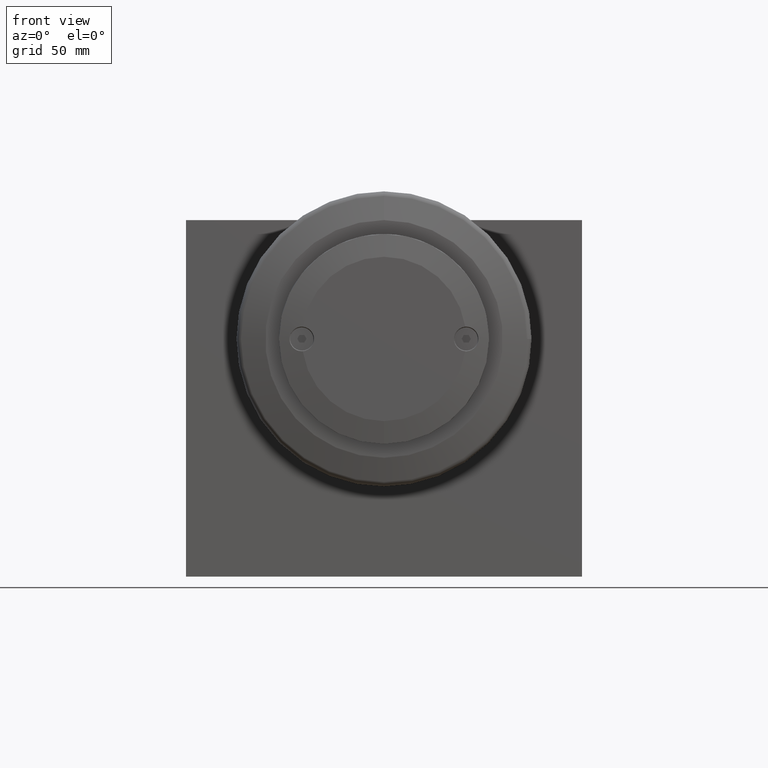
[diagram: clean part render]
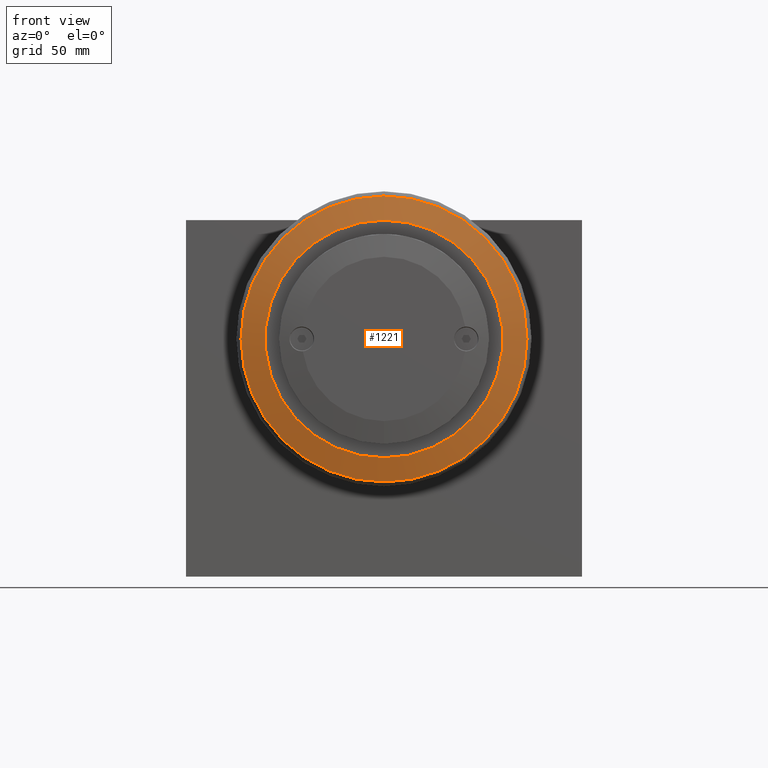
[diagram: same view with one face highlighted and labeled with its STEP entity id]
A machine part, front view. The second image highlights one B-rep face of the part: STEP entity #1221.
In plain terms, the highlighted conical surface has half-angle 75 deg.
Its self-contained STEP definition (entity closure, byte-faithful):
#25=CONICAL_SURFACE('',#1342,67.1920535131552,1.30899693899574);
#88=CIRCLE('',#1330,60.);
#89=CIRCLE('',#1331,60.);
#90=CIRCLE('',#1333,72.1873142487715);
#91=CIRCLE('',#1334,72.1873142487715);
#95=CIRCLE('',#1338,72.1873142487715);
#149=FACE_OUTER_BOUND('',#218,.T.);
#218=EDGE_LOOP('',(#922,#923,#924,#925,#926,#927,#928));
#302=LINE('',#1988,#413);
#413=VECTOR('',#1560,67.1920535131552);
#537=VERTEX_POINT('',#1939);
#538=VERTEX_POINT('',#1940);
#539=VERTEX_POINT('',#1944);
#540=VERTEX_POINT('',#1945);
#541=VERTEX_POINT('',#1947);
#677=EDGE_CURVE('',#537,#538,#88,.T.);
#678=EDGE_CURVE('',#538,#537,#89,.T.);
#679=EDGE_CURVE('',#539,#540,#90,.T.);
#680=EDGE_CURVE('',#540,#541,#91,.T.);
#684=EDGE_CURVE('',#541,#539,#95,.T.);
#688=EDGE_CURVE('',#538,#540,#302,.T.);
#922=ORIENTED_EDGE('',*,*,#677,.F.);
#923=ORIENTED_EDGE('',*,*,#678,.F.);
#924=ORIENTED_EDGE('',*,*,#688,.T.);
#925=ORIENTED_EDGE('',*,*,#679,.F.);
#926=ORIENTED_EDGE('',*,*,#684,.F.);
#927=ORIENTED_EDGE('',*,*,#680,.F.);
#928=ORIENTED_EDGE('',*,*,#688,.F.);
#1221=ADVANCED_FACE('',(#149),#25,.T.);
#1330=AXIS2_PLACEMENT_3D('',#1941,#1534,#1535);
#1331=AXIS2_PLACEMENT_3D('',#1942,#1536,#1537);
#1333=AXIS2_PLACEMENT_3D('',#1946,#1540,#1541);
#1334=AXIS2_PLACEMENT_3D('',#1948,#1542,#1543);
#1338=AXIS2_PLACEMENT_3D('',#1954,#1550,#1551);
#1342=AXIS2_PLACEMENT_3D('',#1987,#1558,#1559);
#1534=DIRECTION('center_axis',(9.59457708555914E-18,-1.,-1.22464679914735E-16));
#1535=DIRECTION('ref_axis',(-1.14678719713861E-33,1.19524517538626E-16,
-1.));
#1536=DIRECTION('center_axis',(9.59457708555914E-18,-1.,-1.22464679914735E-16));
#1537=DIRECTION('ref_axis',(-1.14678719713861E-33,1.19524517538626E-16,
-1.));
#1540=DIRECTION('center_axis',(-9.59457708555913E-18,1.,1.23038019760548E-16));
#1541=DIRECTION('ref_axis',(-1.24794664791974E-32,-1.23038019760548E-16,
1.));
#1542=DIRECTION('center_axis',(-9.59457708555913E-18,1.,1.23038019760548E-16));
#1543=DIRECTION('ref_axis',(-1.24794664791974E-32,-1.23038019760548E-16,
1.));
#1550=DIRECTION('center_axis',(-9.59457708555913E-18,1.,1.23038019760548E-16));
#1551=DIRECTION('ref_axis',(-1.24794664791974E-32,-1.23038019760548E-16,
1.));
#1558=DIRECTION('center_axis',(-9.59457708555914E-18,1.,1.22464679914735E-16));
#1559=DIRECTION('ref_axis',(-1.14678719713861E-33,1.19524517538626E-16,
-1.));
#1560=DIRECTION('',(-1.20775056417314E-16,0.258819045102525,0.965925826289067));
#1939=CARTESIAN_POINT('',(100.,-53.8,60.));
#1940=CARTESIAN_POINT('',(100.,-53.8,180.));
#1941=CARTESIAN_POINT('Origin',(100.,-53.8,120.));
#1942=CARTESIAN_POINT('Origin',(100.,-53.8,120.));
#1944=CARTESIAN_POINT('',(100.,-50.5344189891373,47.8126857512285));
#1945=CARTESIAN_POINT('',(100.,-50.5344189891373,192.187314248771));
#1946=CARTESIAN_POINT('Origin',(100.,-50.5344189891373,120.));
#1947=CARTESIAN_POINT('',(172.187314248771,-50.5344189891373,120.));
#1948=CARTESIAN_POINT('Origin',(100.,-50.5344189891373,120.));
#1954=CARTESIAN_POINT('Origin',(100.,-50.5344189891373,120.));
#1987=CARTESIAN_POINT('Origin',(100.,-51.8728950692286,120.));
#1988=CARTESIAN_POINT('',(100.,-51.8728950692286,187.192053513155));